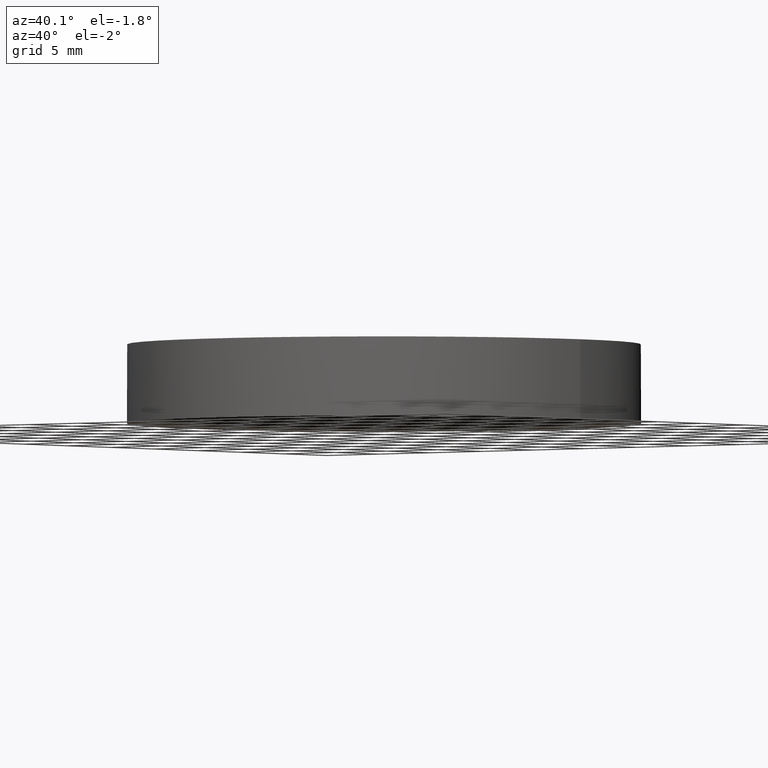
[diagram: clean part render]
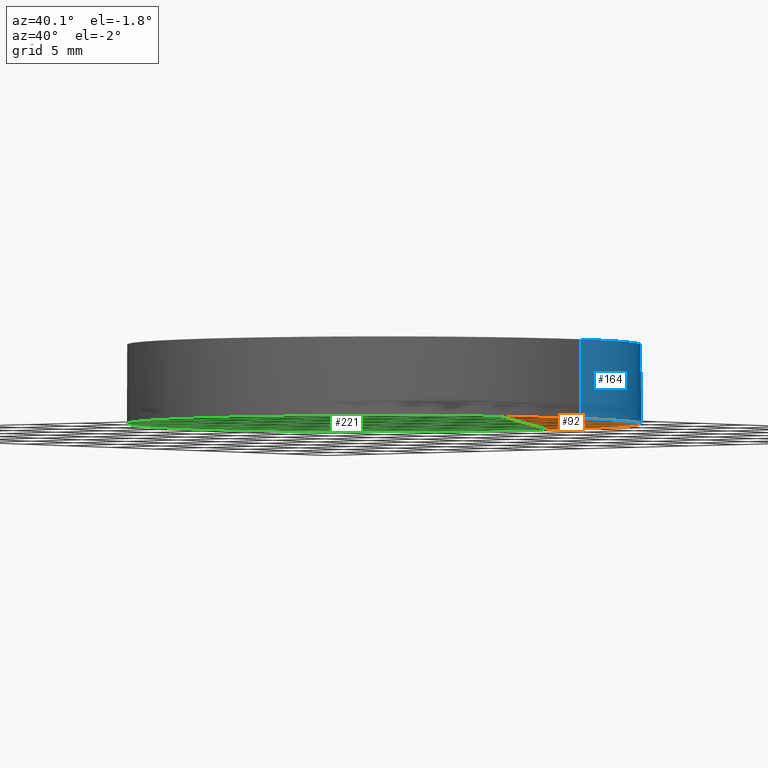
[diagram: same view with three faces highlighted in distinct colors, each labeled with its STEP entity id]
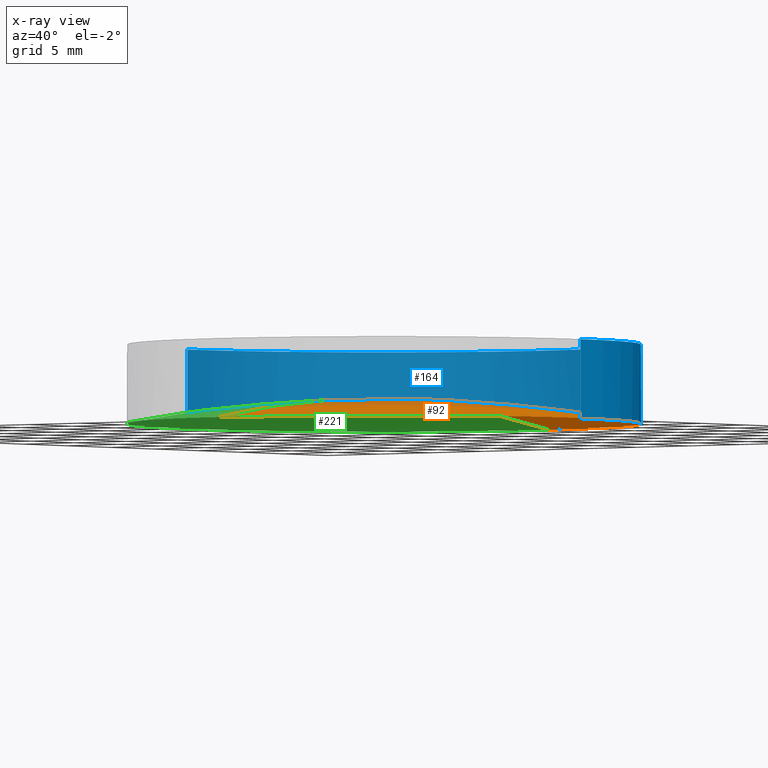
[diagram: x-ray of the same camera — body ghosted, the three highlighted faces saturated]
A machine part, auxiliary view with three faces highlighted in distinct colors.
The next image is the same camera in x-ray (body ghosted, the three faces saturated) — at least one of them is partly hidden behind the body in this view.
Their STEP definitions:

[orange] entity #92 — the highlighted face is a freeform B-spline surface patch.
#7 = DIRECTION ( 'NONE',  ( 1.000000000000000000, 0.0000000000000000000, -2.832073977186420200E-016 ) ) ;
#18 = EDGE_CURVE ( 'NONE', #197, #208, #218, .T. ) ;
#20 = CARTESIAN_POINT ( 'NONE',  ( 2.175134682291738000E-014, -19.27594609542215700, -1.807272574896809500 ) ) ;
#22 = CARTESIAN_POINT ( 'NONE',  ( 12.61616734161279000, -19.27594609542215700, -2.393907391729424000 ) ) ;
#23 = CARTESIAN_POINT ( 'NONE',  ( 2.176337884454689400E-014, -19.04999999999996900, -1.764787732599487400 ) ) ;
#26 = CARTESIAN_POINT ( 'NONE',  ( 6.471666527560834000, 6.500846067886567600, 0.6095057930727018100 ) ) ;
#27 = CARTESIAN_POINT ( 'NONE',  ( -4.662936703425659800E-015, -8.881784197001250400E-016, -1.764787732599490300 ) ) ;
#32 = CIRCLE ( 'NONE', #115, 103.6999999999999900 ) ;
#48 = CARTESIAN_POINT ( 'NONE',  ( 2.176337884454689400E-014, 19.04999999999997600, -1.764787732599487400 ) ) ;
#50 = VERTEX_POINT ( 'NONE', #23 ) ;
#53 = EDGE_LOOP ( 'NONE', ( #176, #116, #105 ) ) ;
#58 = CARTESIAN_POINT ( 'NONE',  ( 12.61616734161278900, 19.27594609542215700, -2.393907391729410700 ) ) ;
#74 = CARTESIAN_POINT ( 'NONE',  ( 6.321722535883327300, -19.27594609542215700, -1.807272574896811000 ) ) ;
#79 = CARTESIAN_POINT ( 'NONE',  ( 6.321722535883327300, 19.27594609542215700, -1.807272574896797300 ) ) ;
#86 = CIRCLE ( 'NONE', #129, 19.05000000000000100 ) ;
#91 = CARTESIAN_POINT ( 'NONE',  ( 18.82901435935469400, 19.27594609542215700, -3.562114460202456800 ) ) ;
#92 = ADVANCED_FACE ( 'NONE', ( #201 ), #139, .F. ) ;
#94 = CARTESIAN_POINT ( 'NONE',  ( -7.105427357601000300E-015, 7.105427357601000300E-015, -103.7000000000000000 ) ) ;
#95 = EDGE_CURVE ( 'NONE', #50, #197, #86, .T. ) ;
#105 = ORIENTED_EDGE ( 'NONE', *, *, #95, .F. ) ;
#110 = CARTESIAN_POINT ( 'NONE',  ( 12.91540832856453100, -6.500846067886569400, 0.008956672726502612100 ) ) ;
#115 = AXIS2_PLACEMENT_3D ( 'NONE', #94, #7, #154 ) ;
#116 = ORIENTED_EDGE ( 'NONE', *, *, #18, .F. ) ;
#117 = CARTESIAN_POINT ( 'NONE',  ( 2.175134682291738000E-014, 19.27594609542215700, -1.807272574896795500 ) ) ;
#128 = CARTESIAN_POINT ( 'NONE',  ( 19.27561693584695800, 6.500846067886569400, -1.186958924546784000 ) ) ;
#129 = AXIS2_PLACEMENT_3D ( 'NONE', #27, #185, #155 ) ;
#130 = CARTESIAN_POINT ( 'NONE',  ( 19.27561693584695800, -6.500846067886571200, -1.186958924546796000 ) ) ;
#133 = CARTESIAN_POINT ( 'NONE',  ( 2.243579633537273100E-014, 6.500846067886569400, 0.6095057930727034700 ) ) ;
#139 =( BOUNDED_SURFACE ( )  B_SPLINE_SURFACE ( 3, 3, ( 
 ( #117, #79, #58, #91 ),
 ( #133, #26, #199, #128 ),
 ( #166, #202, #110, #130 ),
 ( #20, #74, #22, #177 ) ),
 .UNSPECIFIED., .F., .F., .F. ) 
 B_SPLINE_SURFACE_WITH_KNOTS ( ( 4, 4 ),
 ( 4, 4 ),
 ( 0.0000000000000000000, 1.000000000000000000 ),
 ( 0.0000000000000000000, 1.000000000000000000 ),
 .UNSPECIFIED. ) 
 GEOMETRIC_REPRESENTATION_ITEM ( )  RATIONAL_B_SPLINE_SURFACE ( (
 ( 1.000000000000000000, 0.9971233863345515500, 0.9971233863345515500, 1.000000000000000000),
 ( 0.9883814042115282000, 0.9855382127574982000, 0.9855382127574982000, 0.9883814042115282000),
 ( 0.9883814042115282000, 0.9855382127574982000, 0.9855382127574982000, 0.9883814042115282000),
 ( 1.000000000000000000, 0.9971233863345515500, 0.9971233863345515500, 1.000000000000000000) ) ) 
 REPRESENTATION_ITEM ( '' )  SURFACE ( )  );
#154 = DIRECTION ( 'NONE',  ( 0.0000000000000000000, 1.000000000000000000, 0.0000000000000000000 ) ) ;
#155 = DIRECTION ( 'NONE',  ( 1.000000000000000000, 0.0000000000000000000, 1.138269997360109700E-017 ) ) ;
#166 = CARTESIAN_POINT ( 'NONE',  ( 2.243579633537273100E-014, -6.500846067886571200, 0.6095057930726915900 ) ) ;
#176 = ORIENTED_EDGE ( 'NONE', *, *, #226, .F. ) ;
#177 = CARTESIAN_POINT ( 'NONE',  ( 18.82901435935469400, -19.27594609542215700, -3.562114460202470100 ) ) ;
#179 = CARTESIAN_POINT ( 'NONE',  ( -4.662936703425659800E-015, -8.881784197001250400E-016, -1.764787732599490300 ) ) ;
#185 = DIRECTION ( 'NONE',  ( -1.165588477296749900E-017, -5.434385993627839900E-034, 1.000000000000000000 ) ) ;
#187 = CARTESIAN_POINT ( 'NONE',  ( 19.04999999999999700, -8.881784197001250400E-016, -1.764787732599490100 ) ) ;
#197 = VERTEX_POINT ( 'NONE', #187 ) ;
#198 = DIRECTION ( 'NONE',  ( -1.165588477296749900E-017, -5.434385993627839900E-034, 1.000000000000000000 ) ) ;
#199 = CARTESIAN_POINT ( 'NONE',  ( 12.91540832856453300, 6.500846067886567600, 0.008956672726514753500 ) ) ;
#201 = FACE_OUTER_BOUND ( 'NONE', #53, .T. ) ;
#202 = CARTESIAN_POINT ( 'NONE',  ( 6.471666527560833200, -6.500846067886569400, 0.6095057930726895900 ) ) ;
#205 = AXIS2_PLACEMENT_3D ( 'NONE', #179, #198, #216 ) ;
#208 = VERTEX_POINT ( 'NONE', #48 ) ;
#216 = DIRECTION ( 'NONE',  ( 1.000000000000000000, 0.0000000000000000000, 1.138269997360109700E-017 ) ) ;
#218 = CIRCLE ( 'NONE', #205, 19.05000000000000100 ) ;
#226 = EDGE_CURVE ( 'NONE', #208, #50, #32, .T. ) ;

[blue] entity #164 — the highlighted cylindrical surface (partial cylindrical patch) has radius 19.05 mm, axis along (-0, -0, 1).
#6 = FACE_OUTER_BOUND ( 'NONE', #57, .T. ) ;
#14 = LINE ( 'NONE', #165, #104 ) ;
#15 = EDGE_CURVE ( 'NONE', #77, #233, #25, .T. ) ;
#18 = EDGE_CURVE ( 'NONE', #197, #208, #218, .T. ) ;
#25 = CIRCLE ( 'NONE', #230, 19.05000000000000100 ) ;
#29 = DIRECTION ( 'NONE',  ( -1.165588477296749900E-017, -5.434385993627839900E-034, 1.000000000000000000 ) ) ;
#31 = DIRECTION ( 'NONE',  ( -1.165588477296749900E-017, -5.434385993627839900E-034, 1.000000000000000000 ) ) ;
#34 = AXIS2_PLACEMENT_3D ( 'NONE', #101, #29, #204 ) ;
#39 = ORIENTED_EDGE ( 'NONE', *, *, #18, .T. ) ;
#48 = CARTESIAN_POINT ( 'NONE',  ( 2.176337884454689400E-014, 19.04999999999997600, -1.764787732599487400 ) ) ;
#54 = CYLINDRICAL_SURFACE ( 'NONE', #34, 19.05000000000000100 ) ;
#57 = EDGE_LOOP ( 'NONE', ( #39, #192, #87, #162, #60 ) ) ;
#60 = ORIENTED_EDGE ( 'NONE', *, *, #73, .F. ) ;
#62 = EDGE_CURVE ( 'NONE', #195, #77, #90, .T. ) ;
#63 = CARTESIAN_POINT ( 'NONE',  ( -4.662936703425659800E-015, -8.881784197001250400E-016, -1.764787732599490300 ) ) ;
#73 = EDGE_CURVE ( 'NONE', #197, #233, #14, .T. ) ;
#75 = DIRECTION ( 'NONE',  ( -1.165588477296749900E-017, -5.434385993627839900E-034, 1.000000000000000000 ) ) ;
#77 = VERTEX_POINT ( 'NONE', #112 ) ;
#83 = AXIS2_PLACEMENT_3D ( 'NONE', #63, #31, #97 ) ;
#87 = ORIENTED_EDGE ( 'NONE', *, *, #62, .T. ) ;
#90 = LINE ( 'NONE', #220, #152 ) ;
#93 = CIRCLE ( 'NONE', #83, 19.05000000000000100 ) ;
#97 = DIRECTION ( 'NONE',  ( 1.000000000000000000, 0.0000000000000000000, 1.138269997360109700E-017 ) ) ;
#101 = CARTESIAN_POINT ( 'NONE',  ( -4.662936703425659800E-015, -8.881784197001250400E-016, -1.764787732599490100 ) ) ;
#104 = VECTOR ( 'NONE', #75, 1000.000000000000000 ) ;
#112 = CARTESIAN_POINT ( 'NONE',  ( -19.05000000000000400, 1.444773732675583000E-015, 4.099999999999999600 ) ) ;
#113 = DIRECTION ( 'NONE',  ( -1.165588477296749900E-017, -5.434385993627839900E-034, 1.000000000000000000 ) ) ;
#121 = EDGE_CURVE ( 'NONE', #208, #195, #93, .T. ) ;
#131 = DIRECTION ( 'NONE',  ( 1.000000000000000000, 0.0000000000000000000, 0.0000000000000000000 ) ) ;
#152 = VECTOR ( 'NONE', #113, 1000.000000000000000 ) ;
#153 = CARTESIAN_POINT ( 'NONE',  ( 19.04999999999999700, -8.881784197001250400E-016, 4.099999999999999600 ) ) ;
#162 = ORIENTED_EDGE ( 'NONE', *, *, #15, .T. ) ;
#164 = ADVANCED_FACE ( 'NONE', ( #6 ), #54, .T. ) ;
#165 = CARTESIAN_POINT ( 'NONE',  ( 19.04999999999999700, -8.881784197001250400E-016, -1.764787732599489800 ) ) ;
#179 = CARTESIAN_POINT ( 'NONE',  ( -4.662936703425659800E-015, -8.881784197001250400E-016, -1.764787732599490300 ) ) ;
#180 = CARTESIAN_POINT ( 'NONE',  ( -4.731295993454753300E-015, -8.881784197001250400E-016, 4.099999999999999600 ) ) ;
#187 = CARTESIAN_POINT ( 'NONE',  ( 19.04999999999999700, -8.881784197001250400E-016, -1.764787732599490100 ) ) ;
#192 = ORIENTED_EDGE ( 'NONE', *, *, #121, .T. ) ;
#195 = VERTEX_POINT ( 'NONE', #227 ) ;
#197 = VERTEX_POINT ( 'NONE', #187 ) ;
#198 = DIRECTION ( 'NONE',  ( -1.165588477296749900E-017, -5.434385993627839900E-034, 1.000000000000000000 ) ) ;
#200 = DIRECTION ( 'NONE',  ( 1.165588477296749900E-017, 5.434385993627839900E-034, -1.000000000000000000 ) ) ;
#204 = DIRECTION ( 'NONE',  ( 1.000000000000000000, 0.0000000000000000000, 1.138269997360109700E-017 ) ) ;
#205 = AXIS2_PLACEMENT_3D ( 'NONE', #179, #198, #216 ) ;
#208 = VERTEX_POINT ( 'NONE', #48 ) ;
#216 = DIRECTION ( 'NONE',  ( 1.000000000000000000, 0.0000000000000000000, 1.138269997360109700E-017 ) ) ;
#218 = CIRCLE ( 'NONE', #205, 19.05000000000000100 ) ;
#220 = CARTESIAN_POINT ( 'NONE',  ( -19.05000000000000400, 1.444773732675583000E-015, -1.764787732599490300 ) ) ;
#227 = CARTESIAN_POINT ( 'NONE',  ( -19.05000000000000400, 1.444773732675583000E-015, -1.764787732599490500 ) ) ;
#230 = AXIS2_PLACEMENT_3D ( 'NONE', #180, #200, #131 ) ;
#233 = VERTEX_POINT ( 'NONE', #153 ) ;

[green] entity #221 — the highlighted face is a freeform B-spline surface patch.
#4 = ORIENTED_EDGE ( 'NONE', *, *, #121, .F. ) ;
#7 = DIRECTION ( 'NONE',  ( 1.000000000000000000, 0.0000000000000000000, -2.832073977186420200E-016 ) ) ;
#8 = CARTESIAN_POINT ( 'NONE',  ( -12.61616734161276700, 19.27594609542215700, -2.393907391729421800 ) ) ;
#10 = CARTESIAN_POINT ( 'NONE',  ( -19.27561693584693000, -6.500846067886571200, -1.186958924546804200 ) ) ;
#23 = CARTESIAN_POINT ( 'NONE',  ( 2.176337884454689400E-014, -19.04999999999996900, -1.764787732599487400 ) ) ;
#31 = DIRECTION ( 'NONE',  ( -1.165588477296749900E-017, -5.434385993627839900E-034, 1.000000000000000000 ) ) ;
#32 = CIRCLE ( 'NONE', #115, 103.6999999999999900 ) ;
#46 = CARTESIAN_POINT ( 'NONE',  ( -12.61616734161276400, -19.27594609542215700, -2.393907391729436000 ) ) ;
#48 = CARTESIAN_POINT ( 'NONE',  ( 2.176337884454689400E-014, 19.04999999999997600, -1.764787732599487400 ) ) ;
#49 = DIRECTION ( 'NONE',  ( 1.000000000000000000, 0.0000000000000000000, 1.138269997360109700E-017 ) ) ;
#50 = VERTEX_POINT ( 'NONE', #23 ) ;
#61 = CARTESIAN_POINT ( 'NONE',  ( -12.91540832856451200, 6.500846067886567600, 0.008956672726502827200 ) ) ;
#63 = CARTESIAN_POINT ( 'NONE',  ( -4.662936703425659800E-015, -8.881784197001250400E-016, -1.764787732599490300 ) ) ;
#65 = CARTESIAN_POINT ( 'NONE',  ( -12.91540832856450800, -6.500846067886569400, 0.008956672726490463900 ) ) ;
#66 = ORIENTED_EDGE ( 'NONE', *, *, #212, .F. ) ;
#78 = AXIS2_PLACEMENT_3D ( 'NONE', #138, #80, #49 ) ;
#80 = DIRECTION ( 'NONE',  ( -1.165588477296749900E-017, -5.434385993627839900E-034, 1.000000000000000000 ) ) ;
#81 = CARTESIAN_POINT ( 'NONE',  ( -6.938893903907227600E-015, -6.500846067886571200, 0.6095057930726809300 ) ) ;
#83 = AXIS2_PLACEMENT_3D ( 'NONE', #63, #31, #97 ) ;
#84 = CARTESIAN_POINT ( 'NONE',  ( -18.82901435935466600, 19.27594609542215700, -3.562114460202464800 ) ) ;
#89 = EDGE_LOOP ( 'NONE', ( #4, #228, #66 ) ) ;
#93 = CIRCLE ( 'NONE', #83, 19.05000000000000100 ) ;
#94 = CARTESIAN_POINT ( 'NONE',  ( -7.105427357601000300E-015, 7.105427357601000300E-015, -103.7000000000000000 ) ) ;
#97 = DIRECTION ( 'NONE',  ( 1.000000000000000000, 0.0000000000000000000, 1.138269997360109700E-017 ) ) ;
#98 = CARTESIAN_POINT ( 'NONE',  ( -6.471666527560811800, -6.500846067886569400, 0.6095057930726808200 ) ) ;
#115 = AXIS2_PLACEMENT_3D ( 'NONE', #94, #7, #154 ) ;
#119 = CARTESIAN_POINT ( 'NONE',  ( -6.938893903907228400E-015, -19.27594609542215700, -1.807272574896819900 ) ) ;
#121 = EDGE_CURVE ( 'NONE', #208, #195, #93, .T. ) ;
#137 = CARTESIAN_POINT ( 'NONE',  ( -6.938893903907228400E-015, 19.27594609542215700, -1.807272574896806100 ) ) ;
#138 = CARTESIAN_POINT ( 'NONE',  ( -4.662936703425659800E-015, -8.881784197001250400E-016, -1.764787732599490300 ) ) ;
#154 = DIRECTION ( 'NONE',  ( 0.0000000000000000000, 1.000000000000000000, 0.0000000000000000000 ) ) ;
#169 = CARTESIAN_POINT ( 'NONE',  ( -19.27561693584693400, 6.500846067886569400, -1.186958924546792000 ) ) ;
#170 = CARTESIAN_POINT ( 'NONE',  ( -1.040834085586084300E-014, 6.500846067886569400, 0.6095057930726937000 ) ) ;
#171 = CIRCLE ( 'NONE', #78, 19.05000000000000100 ) ;
#183 = CARTESIAN_POINT ( 'NONE',  ( -6.471666527560815400, 6.500846067886567600, 0.6095057930726935900 ) ) ;
#184 = FACE_OUTER_BOUND ( 'NONE', #89, .T. ) ;
#195 = VERTEX_POINT ( 'NONE', #227 ) ;
#203 = CARTESIAN_POINT ( 'NONE',  ( -6.321722535883306000, 19.27594609542215700, -1.807272574896806100 ) ) ;
#208 = VERTEX_POINT ( 'NONE', #48 ) ;
#212 = EDGE_CURVE ( 'NONE', #195, #50, #171, .T. ) ;
#221 = ADVANCED_FACE ( 'NONE', ( #184 ), #235, .F. ) ;
#222 = CARTESIAN_POINT ( 'NONE',  ( -18.82901435935466200, -19.27594609542215700, -3.562114460202478600 ) ) ;
#225 = CARTESIAN_POINT ( 'NONE',  ( -6.321722535883305100, -19.27594609542215700, -1.807272574896819900 ) ) ;
#226 = EDGE_CURVE ( 'NONE', #208, #50, #32, .T. ) ;
#227 = CARTESIAN_POINT ( 'NONE',  ( -19.05000000000000400, 1.444773732675583000E-015, -1.764787732599490500 ) ) ;
#228 = ORIENTED_EDGE ( 'NONE', *, *, #226, .T. ) ;
#235 =( BOUNDED_SURFACE ( )  B_SPLINE_SURFACE ( 3, 3, ( 
 ( #84, #8, #203, #137 ),
 ( #169, #61, #183, #170 ),
 ( #10, #65, #98, #81 ),
 ( #222, #46, #225, #119 ) ),
 .UNSPECIFIED., .F., .F., .T. ) 
 B_SPLINE_SURFACE_WITH_KNOTS ( ( 4, 4 ),
 ( 4, 4 ),
 ( 0.0000000000000000000, 1.000000000000000000 ),
 ( 0.0000000000000000000, 1.000000000000000000 ),
 .UNSPECIFIED. ) 
 GEOMETRIC_REPRESENTATION_ITEM ( )  RATIONAL_B_SPLINE_SURFACE ( (
 ( 1.000000000000000000, 0.9971233863345515500, 0.9971233863345515500, 1.000000000000000000),
 ( 0.9883814042115282000, 0.9855382127574982000, 0.9855382127574982000, 0.9883814042115282000),
 ( 0.9883814042115282000, 0.9855382127574982000, 0.9855382127574982000, 0.9883814042115282000),
 ( 1.000000000000000000, 0.9971233863345515500, 0.9971233863345515500, 1.000000000000000000) ) ) 
 REPRESENTATION_ITEM ( '' )  SURFACE ( )  );